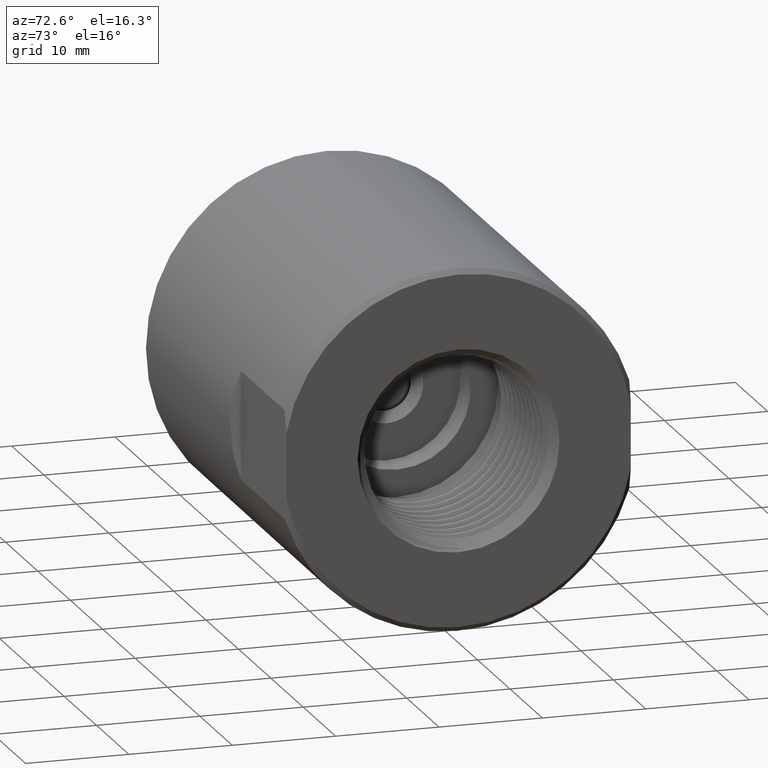
[diagram: clean part render]
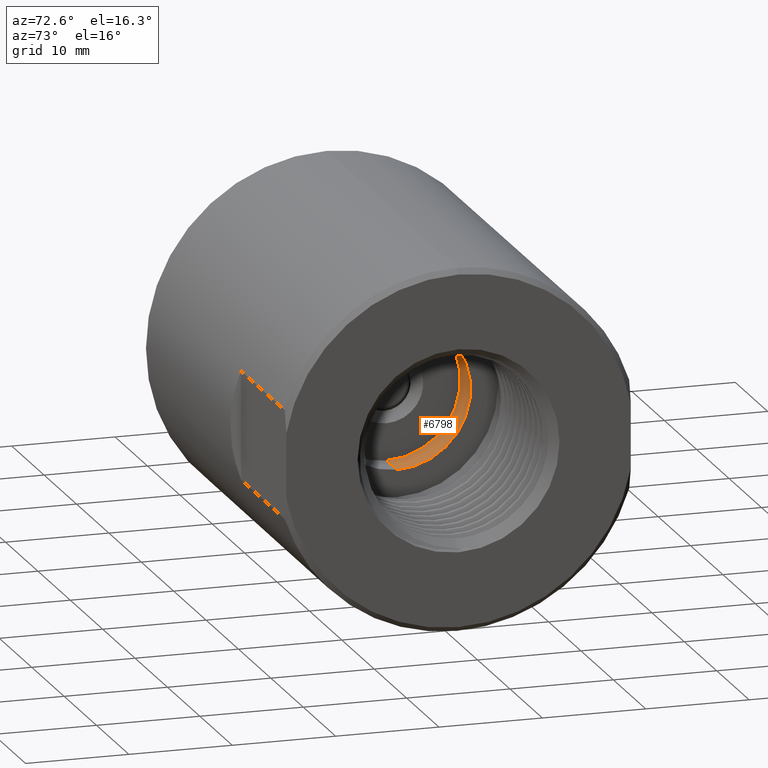
[diagram: same view with one face highlighted and labeled with its STEP entity id]
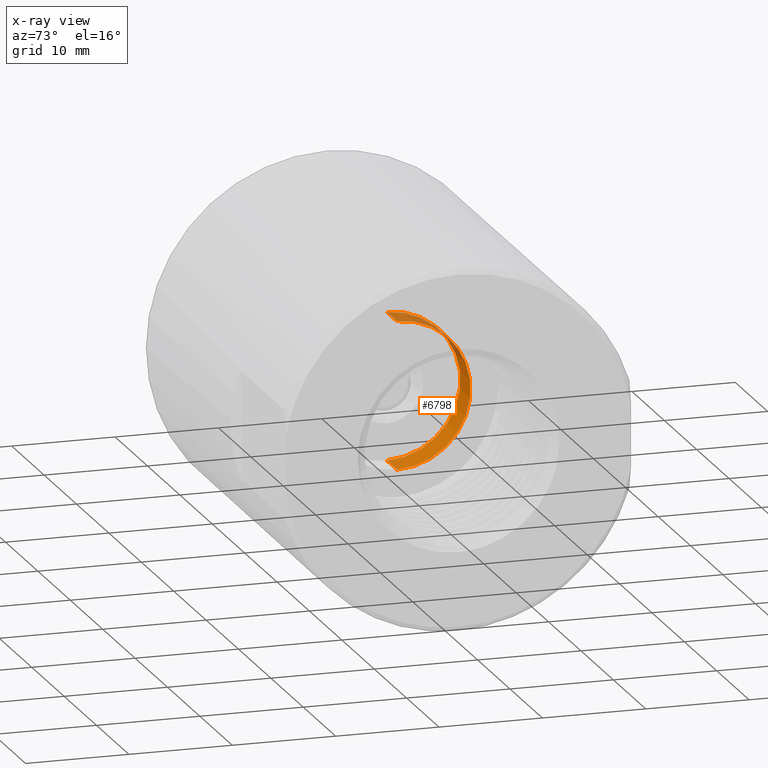
[diagram: x-ray of the same camera — body ghosted, the highlighted face saturated]
A machine part, auxiliary view. The second image highlights one B-rep face of the part: STEP entity #6798.
The next image is the same camera in x-ray: the body ghosted, the highlighted face saturated — about 18% of this face is hidden behind the body in this view.
In plain terms, the highlighted cylindrical surface (partial cylindrical patch) has radius 7.1374 mm, axis along (-1, -0, -0).
Its self-contained STEP definition (entity closure, byte-faithful):
#424 = AXIS2_PLACEMENT_3D ( 'NONE', #8352, #2432, #574 ) ;
#574 = DIRECTION ( 'NONE',  ( 0.0000000000000000000, 0.0000000000000000000, 1.000000000000000000 ) ) ;
#727 = CIRCLE ( 'NONE', #1720, 0.2810000000000001941 ) ;
#837 = DIRECTION ( 'NONE',  ( 0.0000000000000000000, 0.0000000000000000000, 1.000000000000000000 ) ) ;
#906 = VECTOR ( 'NONE', #11494, 39.37007874015748143 ) ;
#958 = CARTESIAN_POINT ( 'NONE',  ( 0.4687499999999999445, 3.441257505604064753E-17, -0.2810000000000001941 ) ) ;
#1106 = EDGE_CURVE ( 'NONE', #6116, #9264, #727, .T. ) ;
#1622 = EDGE_CURVE ( 'NONE', #11507, #8358, #6087, .T. ) ;
#1720 = AXIS2_PLACEMENT_3D ( 'NONE', #11225, #12234, #837 ) ;
#2432 = DIRECTION ( 'NONE',  ( -1.000000000000000000, -0.0000000000000000000, -0.0000000000000000000 ) ) ;
#2781 = CARTESIAN_POINT ( 'NONE',  ( 0.5937499999999998890, 3.441257505604064753E-17, -0.2810000000000001941 ) ) ;
#3368 = ORIENTED_EDGE ( 'NONE', *, *, #1106, .F. ) ;
#3516 = DIRECTION ( 'NONE',  ( -1.000000000000000000, -0.0000000000000000000, -0.0000000000000000000 ) ) ;
#3834 = LINE ( 'NONE', #5821, #906 ) ;
#4516 = EDGE_CURVE ( 'NONE', #9264, #8358, #3834, .T. ) ;
#4546 = CYLINDRICAL_SURFACE ( 'NONE', #424, 0.2810000000000001941 ) ;
#4884 = EDGE_LOOP ( 'NONE', ( #6234, #3368, #11098, #5907 ) ) ;
#5821 = CARTESIAN_POINT ( 'NONE',  ( 0.0000000000000000000, 3.441257505604064753E-17, -0.2810000000000001941 ) ) ;
#5907 = ORIENTED_EDGE ( 'NONE', *, *, #1622, .T. ) ;
#6032 = DIRECTION ( 'NONE',  ( -1.000000000000000000, -0.0000000000000000000, -0.0000000000000000000 ) ) ;
#6087 = CIRCLE ( 'NONE', #7293, 0.2810000000000001941 ) ;
#6116 = VERTEX_POINT ( 'NONE', #8804 ) ;
#6234 = ORIENTED_EDGE ( 'NONE', *, *, #4516, .F. ) ;
#6354 = FACE_OUTER_BOUND ( 'NONE', #4884, .T. ) ;
#6798 = ADVANCED_FACE ( 'NONE', ( #6354 ), #4546, .F. ) ;
#7135 = DIRECTION ( 'NONE',  ( 0.0000000000000000000, 0.0000000000000000000, 1.000000000000000000 ) ) ;
#7293 = AXIS2_PLACEMENT_3D ( 'NONE', #12057, #3516, #7135 ) ;
#7412 = CARTESIAN_POINT ( 'NONE',  ( 0.4687499999999999445, 0.0000000000000000000, 0.2810000000000001941 ) ) ;
#8352 = CARTESIAN_POINT ( 'NONE',  ( 0.0000000000000000000, 0.0000000000000000000, 0.0000000000000000000 ) ) ;
#8358 = VERTEX_POINT ( 'NONE', #958 ) ;
#8407 = EDGE_CURVE ( 'NONE', #6116, #11507, #9596, .T. ) ;
#8804 = CARTESIAN_POINT ( 'NONE',  ( 0.5937499999999998890, 0.0000000000000000000, 0.2810000000000001941 ) ) ;
#9026 = CARTESIAN_POINT ( 'NONE',  ( 0.0000000000000000000, 0.0000000000000000000, 0.2810000000000001941 ) ) ;
#9264 = VERTEX_POINT ( 'NONE', #2781 ) ;
#9596 = LINE ( 'NONE', #9026, #10776 ) ;
#10776 = VECTOR ( 'NONE', #6032, 39.37007874015748143 ) ;
#11098 = ORIENTED_EDGE ( 'NONE', *, *, #8407, .T. ) ;
#11225 = CARTESIAN_POINT ( 'NONE',  ( 0.5937499999999998890, 0.0000000000000000000, 0.0000000000000000000 ) ) ;
#11494 = DIRECTION ( 'NONE',  ( -1.000000000000000000, -0.0000000000000000000, -0.0000000000000000000 ) ) ;
#11507 = VERTEX_POINT ( 'NONE', #7412 ) ;
#12057 = CARTESIAN_POINT ( 'NONE',  ( 0.4687499999999999445, 0.0000000000000000000, 0.0000000000000000000 ) ) ;
#12234 = DIRECTION ( 'NONE',  ( -1.000000000000000000, -0.0000000000000000000, -0.0000000000000000000 ) ) ;